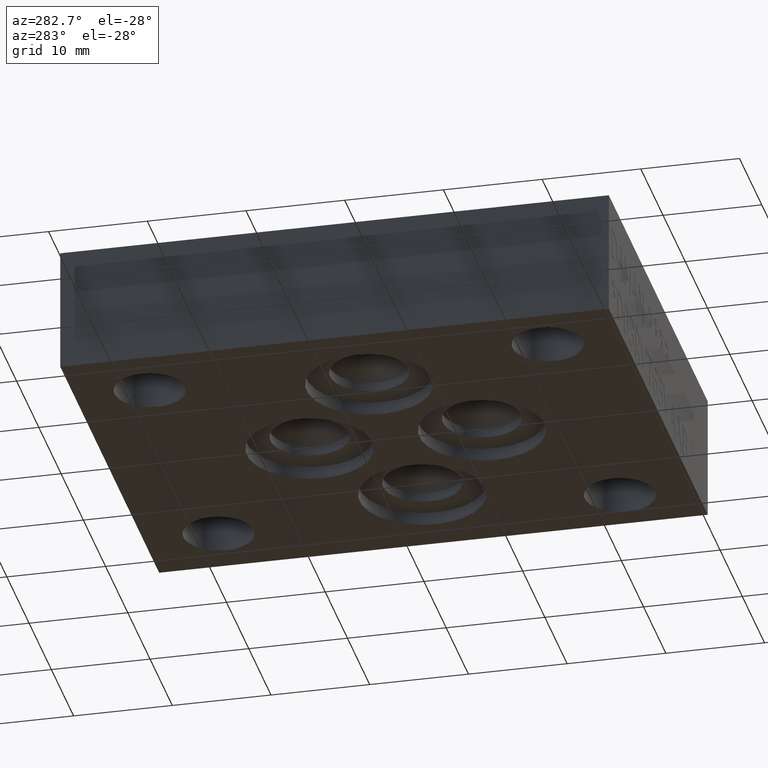
[diagram: clean part render]
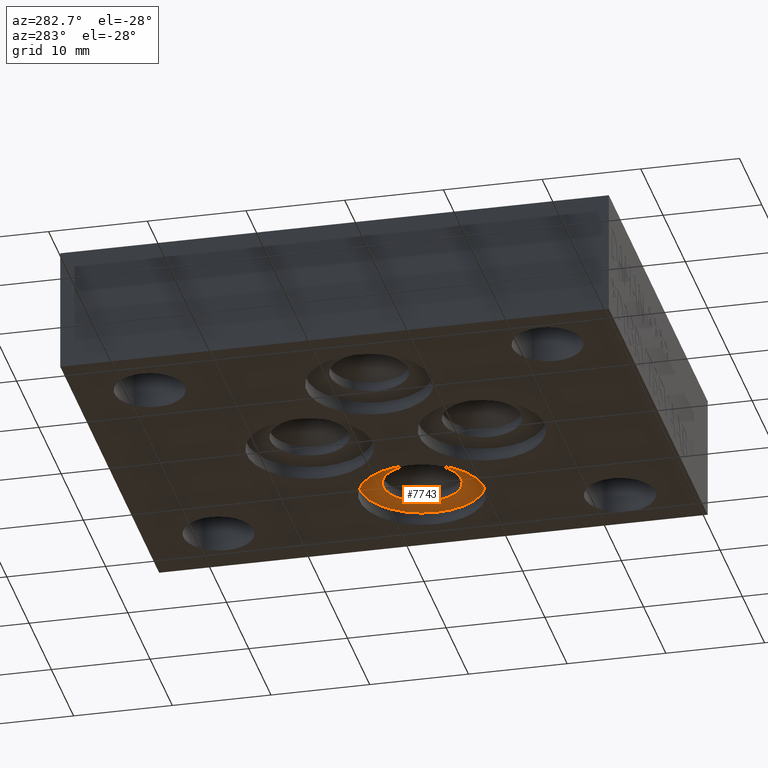
[diagram: same view with one face highlighted and labeled with its STEP entity id]
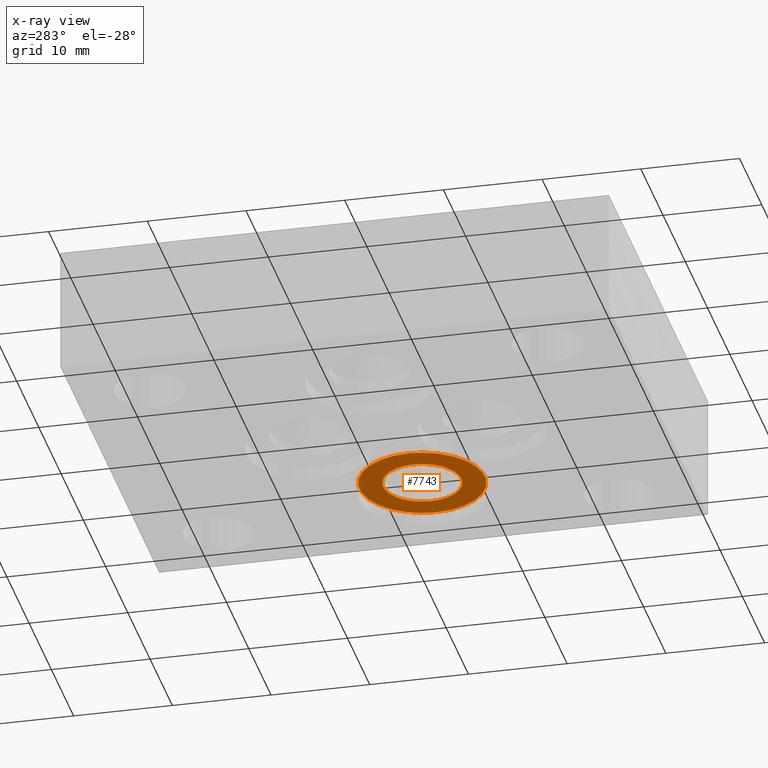
[diagram: x-ray of the same camera — body ghosted, the highlighted face saturated]
A machine part, auxiliary view. The second image highlights one B-rep face of the part: STEP entity #7743.
The next image is the same camera in x-ray: the body ghosted, the highlighted face saturated — about 0% of this face is hidden behind the body in this view.
In plain terms, the highlighted planar face has unit normal (0, 0, -1).
Its self-contained STEP definition (entity closure, byte-faithful):
#24=CIRCLE('',#8055,6.35);
#25=CIRCLE('',#8057,3.9624);
#405=FACE_BOUND('',#1211,.T.);
#785=FACE_OUTER_BOUND('',#1210,.T.);
#1210=EDGE_LOOP('',(#6624));
#1211=EDGE_LOOP('',(#6625));
#3563=VERTEX_POINT('',#12905);
#3564=VERTEX_POINT('',#12909);
#4596=EDGE_CURVE('',#3563,#3563,#24,.T.);
#4597=EDGE_CURVE('',#3564,#3564,#25,.T.);
#6624=ORIENTED_EDGE('',*,*,#4596,.T.);
#6625=ORIENTED_EDGE('',*,*,#4597,.F.);
#7026=PLANE('',#8056);
#7743=ADVANCED_FACE('',(#785,#405),#7026,.T.);
#8055=AXIS2_PLACEMENT_3D('',#12907,#9431,#9432);
#8056=AXIS2_PLACEMENT_3D('',#12908,#9433,#9434);
#8057=AXIS2_PLACEMENT_3D('',#12910,#9435,#9436);
#9431=DIRECTION('center_axis',(0.,0.,-1.));
#9432=DIRECTION('ref_axis',(1.,0.,0.));
#9433=DIRECTION('center_axis',(0.,0.,-1.));
#9434=DIRECTION('ref_axis',(1.,0.,0.));
#9435=DIRECTION('center_axis',(0.,0.,-1.));
#9436=DIRECTION('ref_axis',(1.,0.,0.));
#12905=CARTESIAN_POINT('',(27.78125,26.5938,1.3208));
#12907=CARTESIAN_POINT('Origin',(34.13125,26.5938,1.3208));
#12908=CARTESIAN_POINT('Origin',(34.13125,26.5938,1.3208));
#12909=CARTESIAN_POINT('',(30.1752,26.5938,1.3208));
#12910=CARTESIAN_POINT('Origin',(34.1376,26.5938,1.3208));